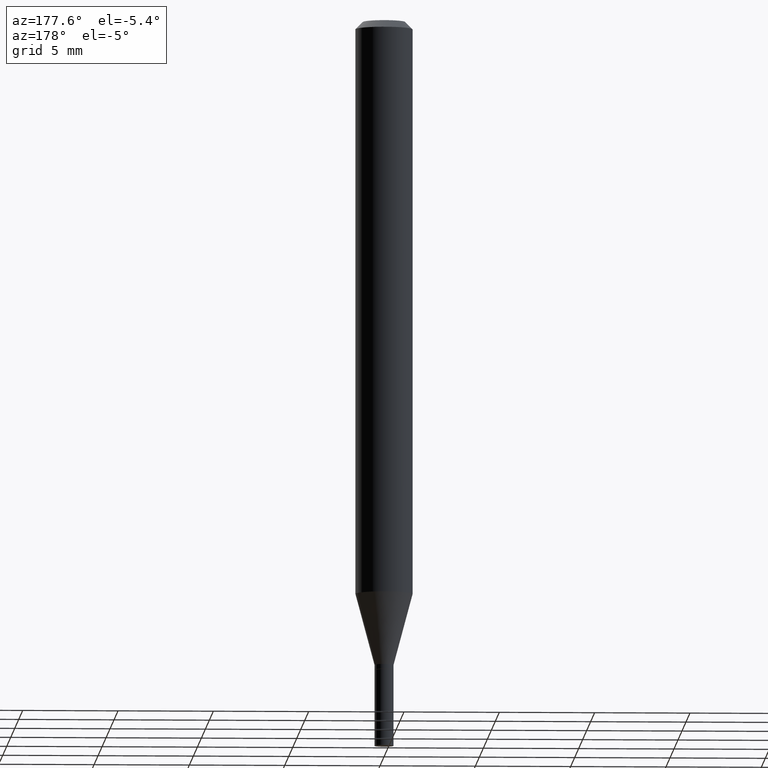
[diagram: clean part render]
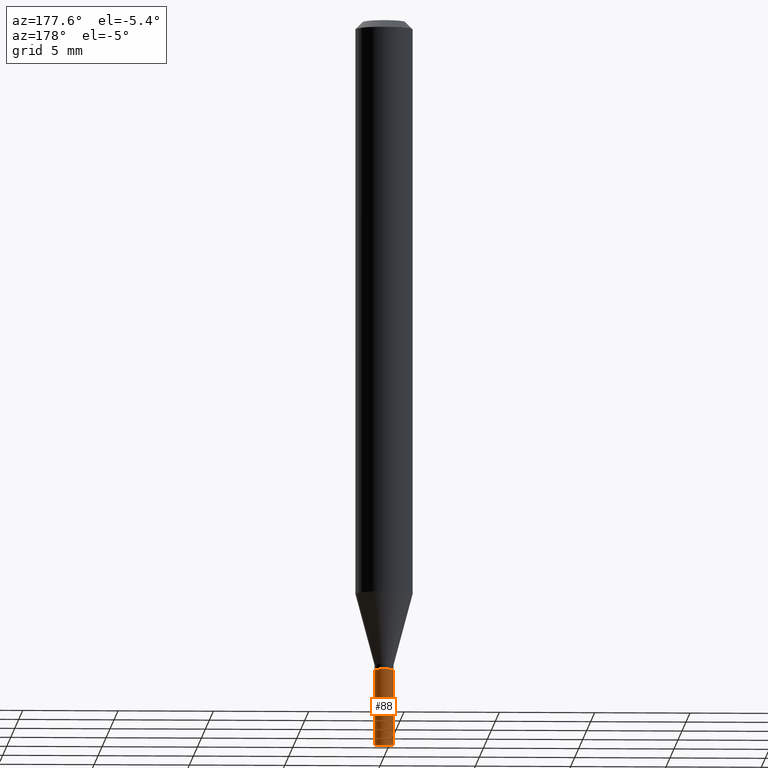
[diagram: same view with one face highlighted and labeled with its STEP entity id]
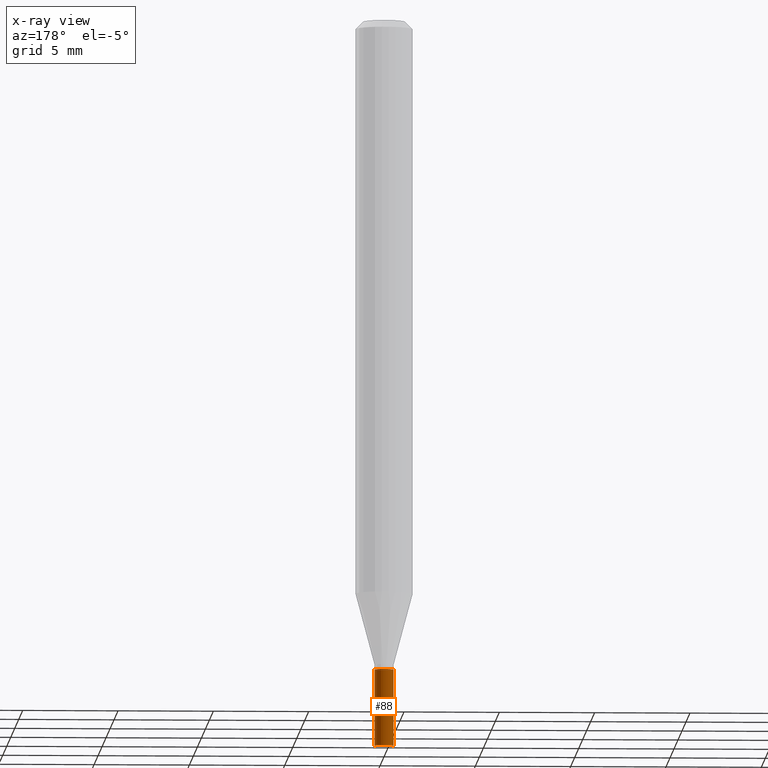
[diagram: x-ray of the same camera — body ghosted, the highlighted face saturated]
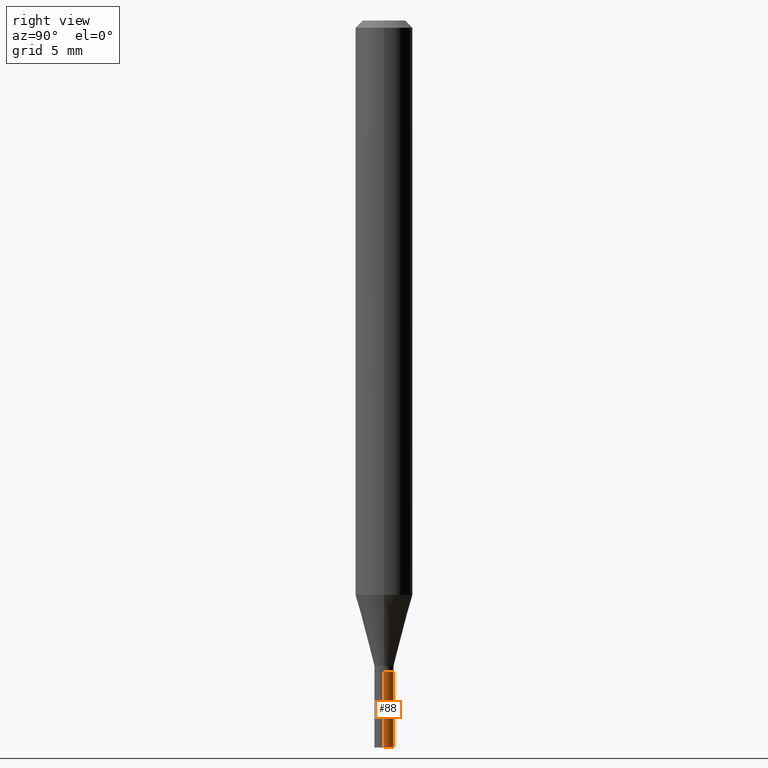
[diagram: same view with one face highlighted and labeled with its STEP entity id]
A machine part, auxiliary view. The second image highlights one B-rep face of the part: STEP entity #88.
The next image is the same camera in x-ray: the body ghosted, the highlighted face saturated — about 0% of this face is hidden behind the body in this view.
A second angle (right view) of the same face is appended — the face is thin or edge-on in the first view.
In plain terms, the highlighted cylindrical surface (edge-blend (fillet) strip) has radius 0.5004 mm, axis along (-0, 0, 1).
Its self-contained STEP definition (entity closure, byte-faithful):
#6 = VECTOR ( 'NONE', #305, 39.37007874015748143 ) ;
#25 = ORIENTED_EDGE ( 'NONE', *, *, #282, .T. ) ;
#32 = EDGE_CURVE ( 'NONE', #200, #359, #73, .T. ) ;
#42 = VECTOR ( 'NONE', #465, 39.37007874015748143 ) ;
#63 = ORIENTED_EDGE ( 'NONE', *, *, #442, .F. ) ;
#69 = LINE ( 'NONE', #295, #6 ) ;
#73 = CIRCLE ( 'NONE', #395, 0.01969999999999999876 ) ;
#74 = DIRECTION ( 'NONE',  ( -2.445468806185136597E-29, 3.491481338843145583E-15, 1.000000000000000000 ) ) ;
#88 = ADVANCED_FACE ( 'NONE', ( #136 ), #358, .T. ) ;
#108 = CARTESIAN_POINT ( 'NONE',  ( -0.01969999999999999876, -4.822290933886080617E-15, -1.500000000000000222 ) ) ;
#136 = FACE_OUTER_BOUND ( 'NONE', #283, .T. ) ;
#140 = AXIS2_PLACEMENT_3D ( 'NONE', #199, #275, #286 ) ;
#143 = AXIS2_PLACEMENT_3D ( 'NONE', #273, #74, #261 ) ;
#198 = DIRECTION ( 'NONE',  ( 1.000000000000000000, -6.982962677686278543E-15, 0.000000000000000000 ) ) ;
#199 = CARTESIAN_POINT ( 'NONE',  ( 0.000000000000000000, 0.000000000000000000, 0.000000000000000000 ) ) ;
#200 = VERTEX_POINT ( 'NONE', #296 ) ;
#206 = CARTESIAN_POINT ( 'NONE',  ( 3.668203209277704895E-29, -5.237222008264718177E-15, -1.500000000000000222 ) ) ;
#211 = CARTESIAN_POINT ( 'NONE',  ( 0.01969999999999999876, -4.824878062147343257E-15, -1.342500000000000249 ) ) ;
#236 = EDGE_CURVE ( 'NONE', #400, #402, #293, .T. ) ;
#261 = DIRECTION ( 'NONE',  ( 1.000000000000000000, -6.982962677686278543E-15, 0.000000000000000000 ) ) ;
#273 = CARTESIAN_POINT ( 'NONE',  ( 3.283041872303546419E-29, -4.687313697396923253E-15, -1.342500000000000249 ) ) ;
#275 = DIRECTION ( 'NONE',  ( -2.445468806185136597E-29, 3.491481338843145583E-15, 1.000000000000000000 ) ) ;
#279 = ORIENTED_EDGE ( 'NONE', *, *, #32, .T. ) ;
#282 = EDGE_CURVE ( 'NONE', #359, #402, #69, .T. ) ;
#283 = EDGE_LOOP ( 'NONE', ( #279, #25, #363, #63 ) ) ;
#286 = DIRECTION ( 'NONE',  ( 1.000000000000000000, -6.982962677686265922E-15, 4.876176775795935232E-29 ) ) ;
#293 = CIRCLE ( 'NONE', #143, 0.01969999999999999876 ) ;
#295 = CARTESIAN_POINT ( 'NONE',  ( -0.01969999999999999876, 1.399769189447397278E-16, -9.690302127802162501E-31 ) ) ;
#296 = CARTESIAN_POINT ( 'NONE',  ( 0.01969999999999999876, -5.374786373015138180E-15, -1.500000000000000222 ) ) ;
#305 = DIRECTION ( 'NONE',  ( -2.445468806185136877E-29, 3.491481338843145188E-15, 1.000000000000000000 ) ) ;
#326 = CARTESIAN_POINT ( 'NONE',  ( -0.01969999999999999876, -4.822290933886080617E-15, -1.342500000000000249 ) ) ;
#356 = LINE ( 'NONE', #461, #42 ) ;
#358 = CYLINDRICAL_SURFACE ( 'NONE', #140, 0.01969999999999999876 ) ;
#359 = VERTEX_POINT ( 'NONE', #108 ) ;
#363 = ORIENTED_EDGE ( 'NONE', *, *, #236, .F. ) ;
#395 = AXIS2_PLACEMENT_3D ( 'NONE', #206, #453, #198 ) ;
#400 = VERTEX_POINT ( 'NONE', #211 ) ;
#402 = VERTEX_POINT ( 'NONE', #326 ) ;
#442 = EDGE_CURVE ( 'NONE', #200, #400, #356, .T. ) ;
#453 = DIRECTION ( 'NONE',  ( -2.445468806185136597E-29, 3.491481338843145583E-15, 1.000000000000000000 ) ) ;
#461 = CARTESIAN_POINT ( 'NONE',  ( 0.01969999999999999876, -1.375643647504194363E-16, 9.606068248317991466E-31 ) ) ;
#465 = DIRECTION ( 'NONE',  ( -2.445468806185136877E-29, 3.491481338843145188E-15, 1.000000000000000000 ) ) ;